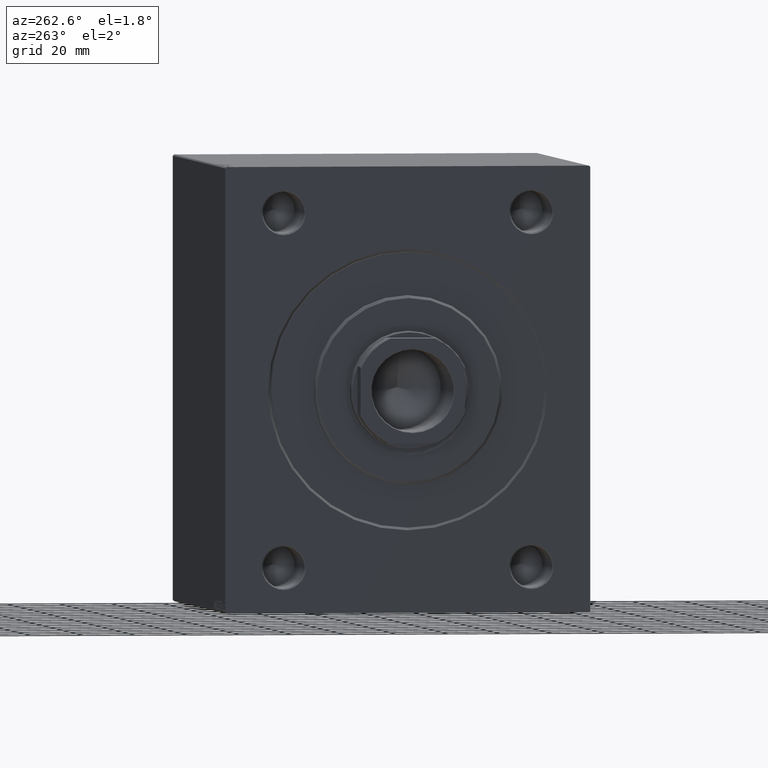
[diagram: clean part render]
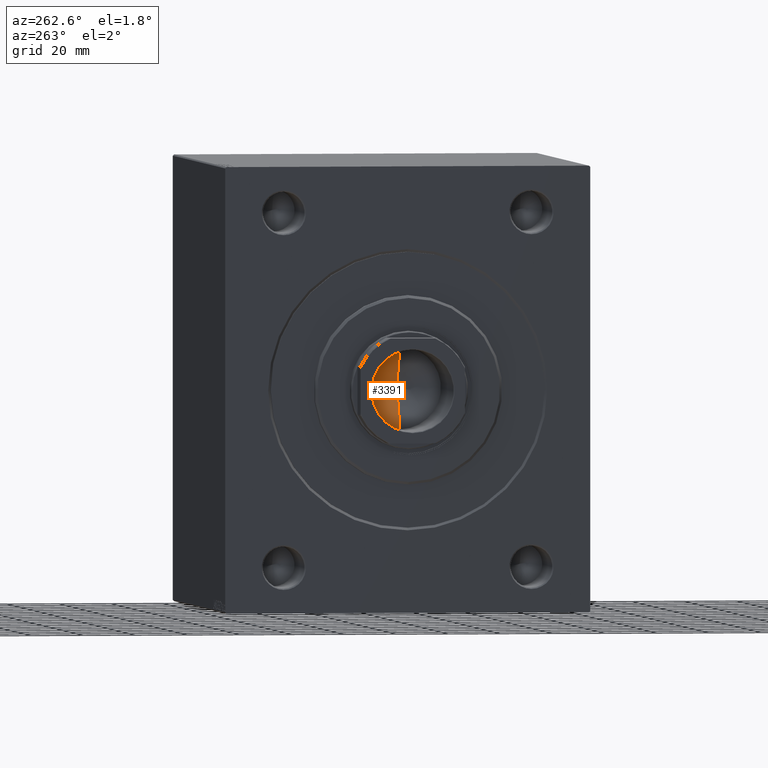
[diagram: same view with one face highlighted and labeled with its STEP entity id]
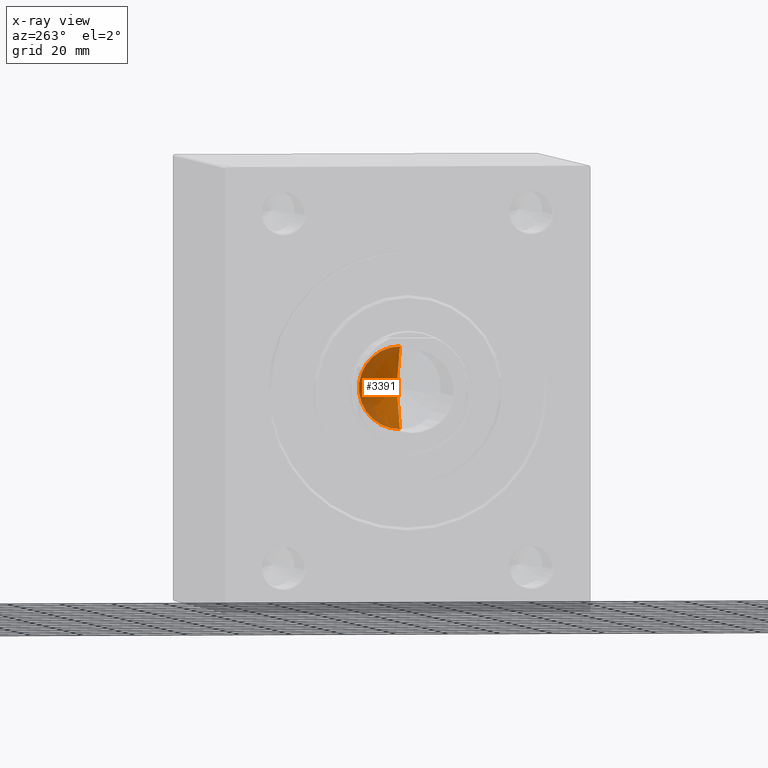
[diagram: x-ray of the same camera — body ghosted, the highlighted face saturated]
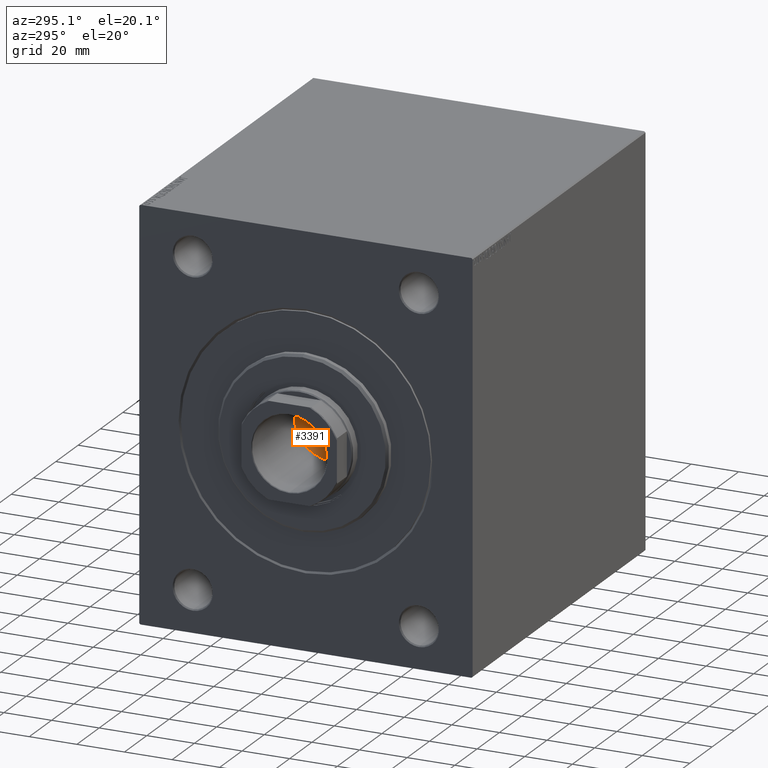
[diagram: same view with one face highlighted and labeled with its STEP entity id]
A machine part, auxiliary view. The second image highlights one B-rep face of the part: STEP entity #3391.
The next image is the same camera in x-ray: the body ghosted, the highlighted face saturated — about 41% of this face is hidden behind the body in this view.
A second angle (auxiliary view) of the same face is appended — the face is thin or edge-on in the first view.
In plain terms, the highlighted conical surface has half-angle 59 deg.
Its self-contained STEP definition (entity closure, byte-faithful):
#236 = DIRECTION ( 'NONE',  ( -0.000000000000000000, -0.000000000000000000, 1.000000000000000000 ) ) ;
#3391 = ADVANCED_FACE ( 'NONE', ( #11015 ), #20790, .F. ) ;
#4208 = CARTESIAN_POINT ( 'NONE',  ( 0.000000000000000000, 0.000000000000000000, 106.0000000000000142 ) ) ;
#7927 = DIRECTION ( 'NONE',  ( 0.8571673007021120005, 0.000000000000000000, 0.5150380749100547106 ) ) ;
#9128 = EDGE_CURVE ( 'NONE', #24784, #21623, #23761, .T. ) ;
#11015 = FACE_OUTER_BOUND ( 'NONE', #23057, .T. ) ;
#12886 = CARTESIAN_POINT ( 'NONE',  ( -1.199718644317817648E-14, 0.000000000000000000, 96.53644525031593560 ) ) ;
#14335 = AXIS2_PLACEMENT_3D ( 'NONE', #24733, #236, #35096 ) ;
#17528 = ORIENTED_EDGE ( 'NONE', *, *, #9128, .F. ) ;
#20076 = VECTOR ( 'NONE', #7927, 1000.000000000000000 ) ;
#20790 = CONICAL_SURFACE ( 'NONE', #14335, 15.74999999999999289, 1.029744258676653867 ) ;
#21623 = VERTEX_POINT ( 'NONE', #24847 ) ;
#23057 = EDGE_LOOP ( 'NONE', ( #17528, #26773, #43486 ) ) ;
#23761 = LINE ( 'NONE', #33672, #29657 ) ;
#24343 = LINE ( 'NONE', #34483, #20076 ) ;
#24733 = CARTESIAN_POINT ( 'NONE',  ( 0.000000000000000000, 0.000000000000000000, 106.0000000000000142 ) ) ;
#24784 = VERTEX_POINT ( 'NONE', #12886 ) ;
#24847 = CARTESIAN_POINT ( 'NONE',  ( -15.74999999999999289, 1.928818708657080556E-15, 106.0000000000000142 ) ) ;
#26773 = ORIENTED_EDGE ( 'NONE', *, *, #36362, .T. ) ;
#27319 = CARTESIAN_POINT ( 'NONE',  ( 15.74999999999999289, 0.000000000000000000, 106.0000000000000142 ) ) ;
#29657 = VECTOR ( 'NONE', #30745, 1000.000000000000000 ) ;
#30745 = DIRECTION ( 'NONE',  ( -0.8571673007021120005, 1.049727191138618326E-16, 0.5150380749100547106 ) ) ;
#31651 = DIRECTION ( 'NONE',  ( -0.000000000000000000, -0.000000000000000000, 1.000000000000000000 ) ) ;
#32118 = AXIS2_PLACEMENT_3D ( 'NONE', #4208, #31651, #41756 ) ;
#33672 = CARTESIAN_POINT ( 'NONE',  ( -15.74999999999999289, 1.928818708657080556E-15, 106.0000000000000142 ) ) ;
#34483 = CARTESIAN_POINT ( 'NONE',  ( 15.74999999999999289, 0.000000000000000000, 106.0000000000000142 ) ) ;
#35096 = DIRECTION ( 'NONE',  ( 1.000000000000000000, 0.000000000000000000, 0.000000000000000000 ) ) ;
#36362 = EDGE_CURVE ( 'NONE', #24784, #43100, #24343, .T. ) ;
#39305 = CIRCLE ( 'NONE', #32118, 15.74999999999999289 ) ;
#41756 = DIRECTION ( 'NONE',  ( 1.000000000000000000, 0.000000000000000000, 0.000000000000000000 ) ) ;
#43100 = VERTEX_POINT ( 'NONE', #27319 ) ;
#43486 = ORIENTED_EDGE ( 'NONE', *, *, #44071, .T. ) ;
#44071 = EDGE_CURVE ( 'NONE', #43100, #21623, #39305, .T. ) ;